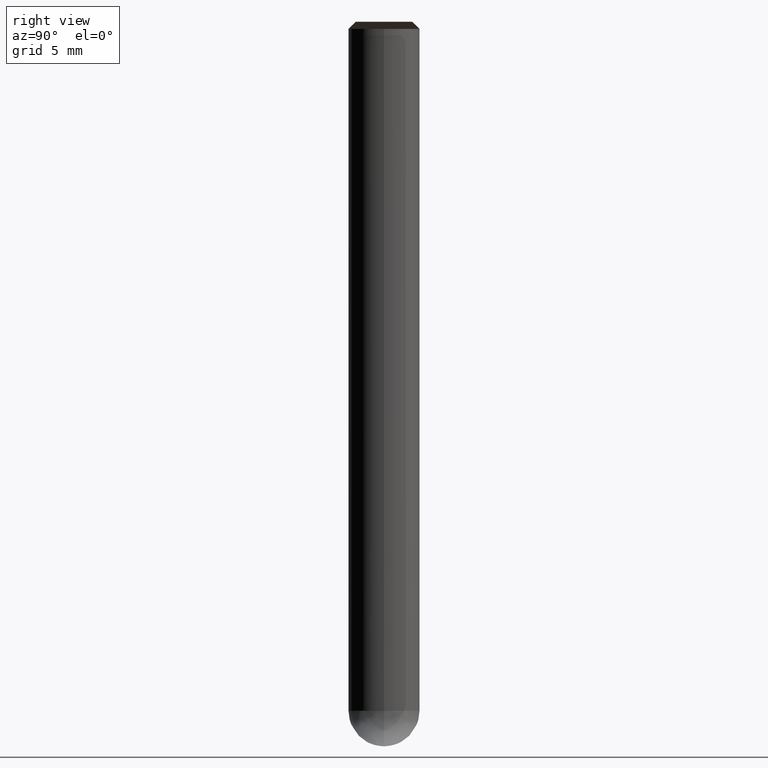
[diagram: clean part render]
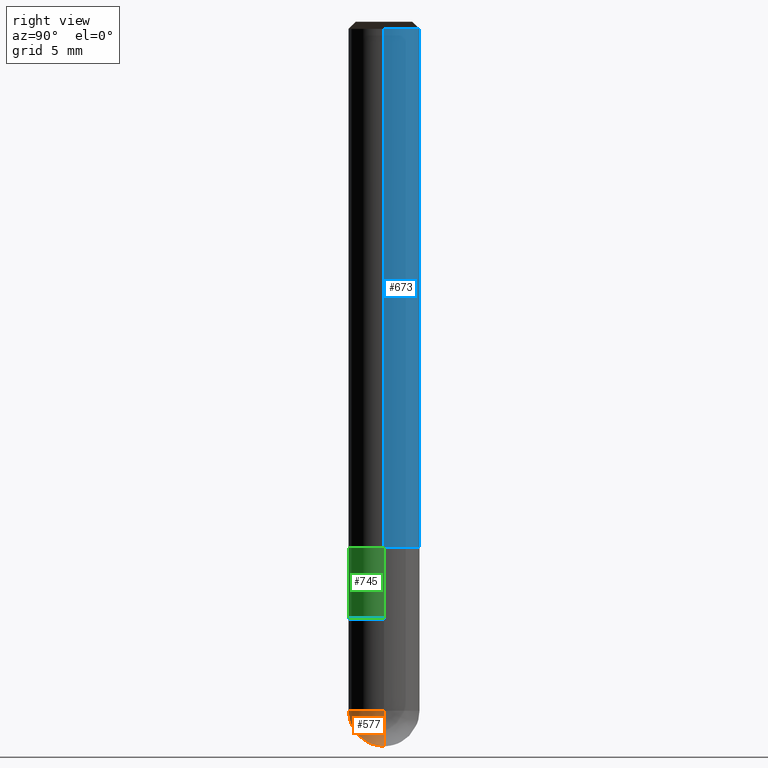
[diagram: same view with three faces highlighted in distinct colors, each labeled with its STEP entity id]
A machine part, right view with three faces highlighted in distinct colors.
Their STEP definitions:

[orange] entity #577 — the highlighted face is a freeform B-spline surface patch.
#453=CARTESIAN_POINT('',(0.0,0.0,-14.0));
#454=CARTESIAN_POINT('',(2.5,0.0,-14.0));
#458=CARTESIAN_POINT('',(-2.5,0.0,-14.0));
#459=CARTESIAN_POINT('',(2.5,0.0,-11.5));
#463=CARTESIAN_POINT('',(-2.5,0.0,-11.5));
#470=CARTESIAN_POINT('',(-2.5,-2.5,-14.0));
#471=CARTESIAN_POINT('',(0.0,-2.5,-14.0));
#472=CARTESIAN_POINT('',(2.5,-2.5,-14.0));
#473=CARTESIAN_POINT('',(-2.5,-2.5,-11.5));
#474=CARTESIAN_POINT('',(0.0,-2.5,-11.5));
#475=CARTESIAN_POINT('',(2.5,-2.5,-11.5));
#562=(
BOUNDED_SURFACE()
B_SPLINE_SURFACE(2,2,(
(#453,#453,#453,#453,#453),
(#458,#470,#471,#472,#454),
(#463,#473,#474,#475,#459)
), .UNSPECIFIED.,.F.,.F.,.F.)
B_SPLINE_SURFACE_WITH_KNOTS((3,3),(3,2,3),(
0.0,1.0),(
0.0,0.5,1.0), .UNSPECIFIED.)
GEOMETRIC_REPRESENTATION_ITEM()
RATIONAL_B_SPLINE_SURFACE(((1.0,0.707106781187,1.0,0.707106781187,1.0),
(0.707106781187,0.5,0.707106781187,0.5,0.707106781187),
(1.0,0.707106781187,1.0,0.707106781187,1.0)
))
REPRESENTATION_ITEM('')
SURFACE()
);
#563=(
BOUNDED_CURVE()
B_SPLINE_CURVE(2,(#459,#454,#453),.UNSPECIFIED.,.F.,.F.)
B_SPLINE_CURVE_WITH_KNOTS((3,3),
(0.0,1.0),.UNSPECIFIED.)
CURVE()
GEOMETRIC_REPRESENTATION_ITEM()
RATIONAL_B_SPLINE_CURVE((1.0,0.707106781187,1.0))
REPRESENTATION_ITEM('')
);
#564=(
BOUNDED_CURVE()
B_SPLINE_CURVE(2,(#453,#458,#463),.UNSPECIFIED.,.F.,.F.)
B_SPLINE_CURVE_WITH_KNOTS((3,3),
(0.0,1.0),.UNSPECIFIED.)
CURVE()
GEOMETRIC_REPRESENTATION_ITEM()
RATIONAL_B_SPLINE_CURVE((1.0,0.707106781187,1.0))
REPRESENTATION_ITEM('')
);
#565=(
BOUNDED_CURVE()
B_SPLINE_CURVE(2,(#463,#473,#474,#475,#459),.UNSPECIFIED.,.F.,.F.)
B_SPLINE_CURVE_WITH_KNOTS((3,2,3),
(0.0,0.5,1.0),.UNSPECIFIED.)
CURVE()
GEOMETRIC_REPRESENTATION_ITEM()
RATIONAL_B_SPLINE_CURVE((1.0,0.707106781187,1.0,0.707106781187,1.0))
REPRESENTATION_ITEM('')
);
#566=VERTEX_POINT('',#453);
#567=VERTEX_POINT('',#459);
#568=VERTEX_POINT('',#463);
#569=EDGE_CURVE('',#567,#566,#563,.T.);
#570=EDGE_CURVE('',#566,#568,#564,.T.);
#571=EDGE_CURVE('',#568,#567,#565,.T.);
#572=ORIENTED_EDGE('',*,*,#569,.T.);
#573=ORIENTED_EDGE('',*,*,#570,.T.);
#574=ORIENTED_EDGE('',*,*,#571,.T.);
#575=EDGE_LOOP('',(#572,#573,#574));
#576=FACE_OUTER_BOUND('',#575,.T.);
#577=ADVANCED_FACE('',(#576),#562,.T.);

[blue] entity #673 — the highlighted face is a freeform B-spline surface patch.
#479=CARTESIAN_POINT('',(2.5,0.0,0.0));
#480=CARTESIAN_POINT('',(2.5,2.5,0.0));
#481=CARTESIAN_POINT('',(0.0,2.5,0.0));
#482=CARTESIAN_POINT('',(-2.5,2.5,0.0));
#483=CARTESIAN_POINT('',(-2.5,0.0,0.0));
#484=CARTESIAN_POINT('',(2.5,0.0,36.5));
#485=CARTESIAN_POINT('',(2.5,2.5,36.5));
#486=CARTESIAN_POINT('',(0.0,2.5,36.5));
#487=CARTESIAN_POINT('',(-2.5,2.5,36.5));
#488=CARTESIAN_POINT('',(-2.5,0.0,36.5));
#654=(
BOUNDED_SURFACE()
B_SPLINE_SURFACE(1,2,(
(#479,#480,#481,#482,#483),
(#484,#485,#486,#487,#488)
), .UNSPECIFIED.,.F.,.F.,.F.)
B_SPLINE_SURFACE_WITH_KNOTS((2,2),(3,2,3),(
0.0,1.0),(
0.0,0.5,1.0), .UNSPECIFIED.)
GEOMETRIC_REPRESENTATION_ITEM()
RATIONAL_B_SPLINE_SURFACE(((1.0,0.707106781187,1.0,0.707106781187,1.0),
(1.0,0.707106781187,1.0,0.707106781187,1.0)
))
REPRESENTATION_ITEM('')
SURFACE()
);
#655=(
BOUNDED_CURVE()
B_SPLINE_CURVE(2,(#483,#482,#481,#480,#479),.UNSPECIFIED.,.F.,.F.)
B_SPLINE_CURVE_WITH_KNOTS((3,2,3),
(0.0,0.5,1.0),.UNSPECIFIED.)
CURVE()
GEOMETRIC_REPRESENTATION_ITEM()
RATIONAL_B_SPLINE_CURVE((1.0,0.707106781187,1.0,0.707106781187,1.0))
REPRESENTATION_ITEM('')
);
#656=(
BOUNDED_CURVE()
B_SPLINE_CURVE(1,(#479,#484),.UNSPECIFIED.,.F.,.F.)
B_SPLINE_CURVE_WITH_KNOTS((2,2),
(0.0,1.0),.UNSPECIFIED.)
CURVE()
GEOMETRIC_REPRESENTATION_ITEM()
RATIONAL_B_SPLINE_CURVE((1.0,1.0))
REPRESENTATION_ITEM('')
);
#657=(
BOUNDED_CURVE()
B_SPLINE_CURVE(2,(#484,#485,#486,#487,#488),.UNSPECIFIED.,.F.,.F.)
B_SPLINE_CURVE_WITH_KNOTS((3,2,3),
(0.0,0.5,1.0),.UNSPECIFIED.)
CURVE()
GEOMETRIC_REPRESENTATION_ITEM()
RATIONAL_B_SPLINE_CURVE((1.0,0.707106781187,1.0,0.707106781187,1.0))
REPRESENTATION_ITEM('')
);
#658=(
BOUNDED_CURVE()
B_SPLINE_CURVE(1,(#488,#483),.UNSPECIFIED.,.F.,.F.)
B_SPLINE_CURVE_WITH_KNOTS((2,2),
(0.0,1.0),.UNSPECIFIED.)
CURVE()
GEOMETRIC_REPRESENTATION_ITEM()
RATIONAL_B_SPLINE_CURVE((1.0,1.0))
REPRESENTATION_ITEM('')
);
#659=VERTEX_POINT('',#479);
#660=VERTEX_POINT('',#483);
#661=VERTEX_POINT('',#484);
#662=VERTEX_POINT('',#488);
#663=EDGE_CURVE('',#660,#659,#655,.T.);
#664=EDGE_CURVE('',#659,#661,#656,.T.);
#665=EDGE_CURVE('',#661,#662,#657,.T.);
#666=EDGE_CURVE('',#662,#660,#658,.T.);
#667=ORIENTED_EDGE('',*,*,#663,.T.);
#668=ORIENTED_EDGE('',*,*,#664,.T.);
#669=ORIENTED_EDGE('',*,*,#665,.T.);
#670=ORIENTED_EDGE('',*,*,#666,.T.);
#671=EDGE_LOOP('',(#667,#668,#669,#670));
#672=FACE_OUTER_BOUND('',#671,.T.);
#673=ADVANCED_FACE('',(#672),#654,.T.);

[green] entity #745 — the highlighted face is a freeform B-spline surface patch.
#464=CARTESIAN_POINT('',(2.5,0.0,-5.0));
#468=CARTESIAN_POINT('',(-2.5,0.0,-5.0));
#476=CARTESIAN_POINT('',(-2.5,-2.5,-5.0));
#477=CARTESIAN_POINT('',(0.0,-2.5,-5.0));
#478=CARTESIAN_POINT('',(2.5,-2.5,-5.0));
#479=CARTESIAN_POINT('',(2.5,0.0,0.0));
#483=CARTESIAN_POINT('',(-2.5,0.0,0.0));
#495=CARTESIAN_POINT('',(-2.5,-2.5,0.0));
#496=CARTESIAN_POINT('',(0.0,-2.5,0.0));
#497=CARTESIAN_POINT('',(2.5,-2.5,0.0));
#726=(
BOUNDED_SURFACE()
B_SPLINE_SURFACE(1,2,(
(#468,#476,#477,#478,#464),
(#483,#495,#496,#497,#479)
), .UNSPECIFIED.,.F.,.F.,.F.)
B_SPLINE_SURFACE_WITH_KNOTS((2,2),(3,2,3),(
0.0,1.0),(
0.0,0.5,1.0), .UNSPECIFIED.)
GEOMETRIC_REPRESENTATION_ITEM()
RATIONAL_B_SPLINE_SURFACE(((1.0,0.707106781187,1.0,0.707106781187,1.0),
(1.0,0.707106781187,1.0,0.707106781187,1.0)
))
REPRESENTATION_ITEM('')
SURFACE()
);
#727=(
BOUNDED_CURVE()
B_SPLINE_CURVE(2,(#464,#478,#477,#476,#468),.UNSPECIFIED.,.F.,.F.)
B_SPLINE_CURVE_WITH_KNOTS((3,2,3),
(0.0,0.5,1.0),.UNSPECIFIED.)
CURVE()
GEOMETRIC_REPRESENTATION_ITEM()
RATIONAL_B_SPLINE_CURVE((1.0,0.707106781187,1.0,0.707106781187,1.0))
REPRESENTATION_ITEM('')
);
#728=(
BOUNDED_CURVE()
B_SPLINE_CURVE(1,(#468,#483),.UNSPECIFIED.,.F.,.F.)
B_SPLINE_CURVE_WITH_KNOTS((2,2),
(0.0,1.0),.UNSPECIFIED.)
CURVE()
GEOMETRIC_REPRESENTATION_ITEM()
RATIONAL_B_SPLINE_CURVE((1.0,1.0))
REPRESENTATION_ITEM('')
);
#729=(
BOUNDED_CURVE()
B_SPLINE_CURVE(2,(#483,#495,#496,#497,#479),.UNSPECIFIED.,.F.,.F.)
B_SPLINE_CURVE_WITH_KNOTS((3,2,3),
(0.0,0.5,1.0),.UNSPECIFIED.)
CURVE()
GEOMETRIC_REPRESENTATION_ITEM()
RATIONAL_B_SPLINE_CURVE((1.0,0.707106781187,1.0,0.707106781187,1.0))
REPRESENTATION_ITEM('')
);
#730=(
BOUNDED_CURVE()
B_SPLINE_CURVE(1,(#479,#464),.UNSPECIFIED.,.F.,.F.)
B_SPLINE_CURVE_WITH_KNOTS((2,2),
(0.0,1.0),.UNSPECIFIED.)
CURVE()
GEOMETRIC_REPRESENTATION_ITEM()
RATIONAL_B_SPLINE_CURVE((1.0,1.0))
REPRESENTATION_ITEM('')
);
#731=VERTEX_POINT('',#464);
#732=VERTEX_POINT('',#468);
#733=VERTEX_POINT('',#479);
#734=VERTEX_POINT('',#483);
#735=EDGE_CURVE('',#731,#732,#727,.T.);
#736=EDGE_CURVE('',#732,#734,#728,.T.);
#737=EDGE_CURVE('',#734,#733,#729,.T.);
#738=EDGE_CURVE('',#733,#731,#730,.T.);
#739=ORIENTED_EDGE('',*,*,#735,.T.);
#740=ORIENTED_EDGE('',*,*,#736,.T.);
#741=ORIENTED_EDGE('',*,*,#737,.T.);
#742=ORIENTED_EDGE('',*,*,#738,.T.);
#743=EDGE_LOOP('',(#739,#740,#741,#742));
#744=FACE_OUTER_BOUND('',#743,.T.);
#745=ADVANCED_FACE('',(#744),#726,.T.);